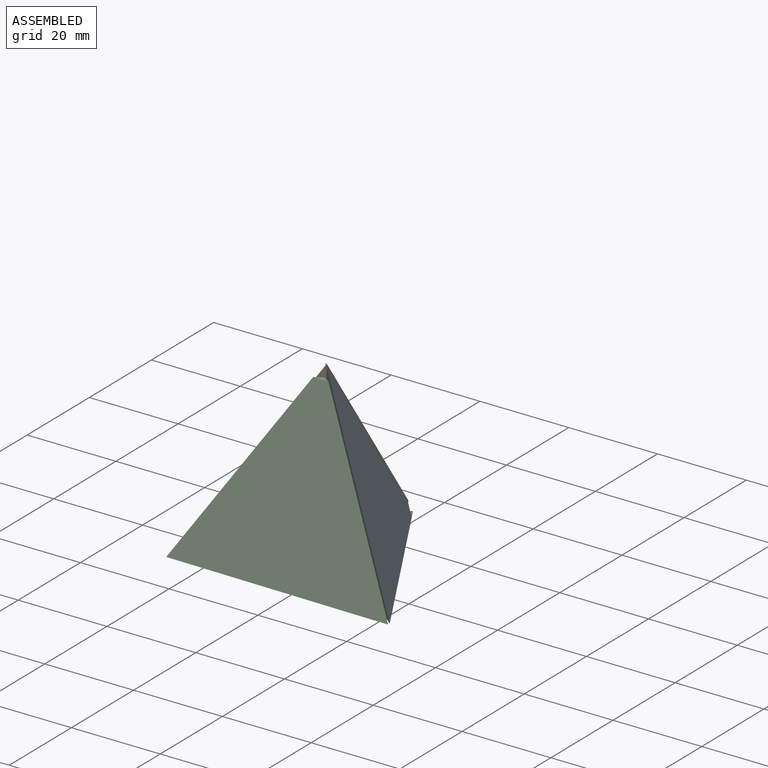
[diagram: assembled view]
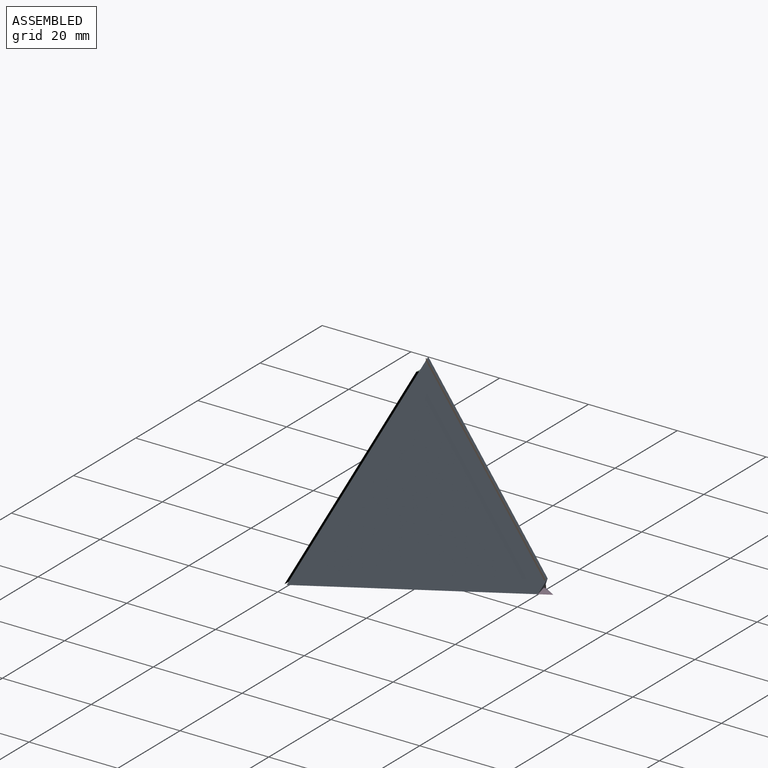
[diagram: assembled view, second angle]
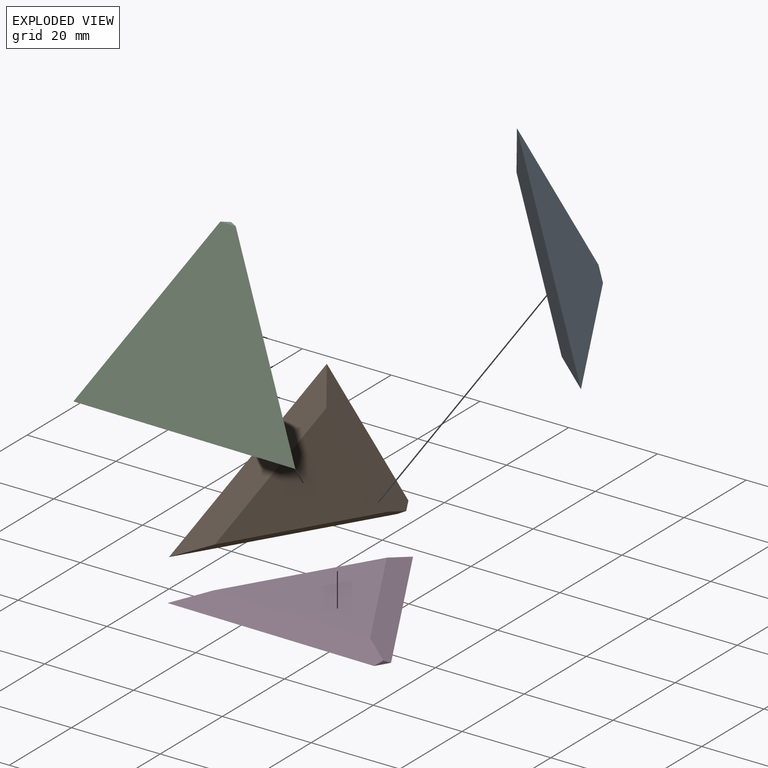
[diagram: exploded view]
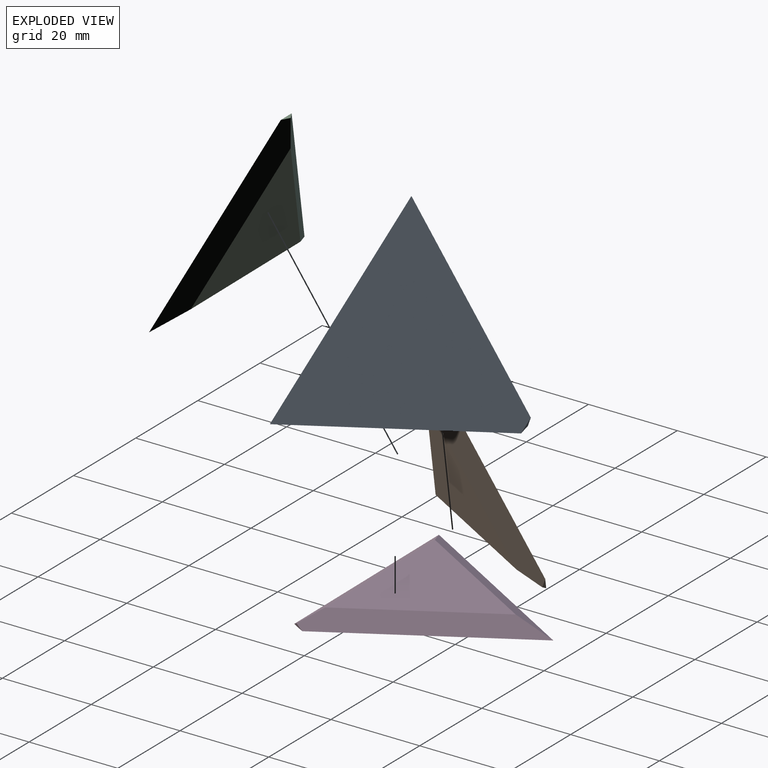
[diagram: exploded view, second angle]
ASSEMBLY  parts=4 mates=3
PART A: 6 faces, bbox 48.3x43.3x3 mm
  f0: plane 48.27x43.3mm, normal (0,0,-1), area 1077.3mm2, adj f1,f2,f4,f5
  f1: plane 41.97x23.27mm, normal (-0.5,0.29,0.82), area 218.8mm2, adj f0,f2,f3,f4,f5
  f2: plane 47.69x4.24mm, normal (0,-0.58,0.82), area 218.8mm2, adj f0,f1,f3,f4,f5
  f3: plane 35.3x30.57mm, normal (0,0,1), area 539.7mm2, adj f1,f2,f4
  f4: plane 43.3x25mm, normal (0.5,0.29,0.82), area 221.6mm2, adj f0,f1,f2,f3
  f5: plane 3x1.73mm, normal (-0.82,-0.47,-0.33), area 1.7mm2, adj f0,f1,f2
PART B: same geometry as A
PART C: same geometry as A
PART D: same geometry as A
PLACE A rot(axis=(0.82,-0.47,-0.34),119.6deg) t=(-1.61,-8.19,55.63)mm
PLACE B rot(axis=(0.71,-0.41,0.58),179.6deg) t=(-17.84,-8.43,55.74)mm
PLACE C rot(axis=(-0.81,0.47,0.33),120.4deg) t=(-9.94,-23.11,55.78)mm
PLACE D rot(axis=(0,0,1),120deg) t=(-9.75,-13.57,42.11)mm fixed
MATE fastened D.f4 <-> B.f1  axis (-0.49,0.29,0.82) through (-20.51,-7.35,43.58)mm
MATE fastened D.f2 <-> A.f2  axis (0.51,0.29,0.81) through (0.86,-7.1,43.42)mm
MATE fastened C.f4 <-> D.f1  axis (-0.01,0.57,-0.82) through (-10.04,-25.98,43.6)mm
